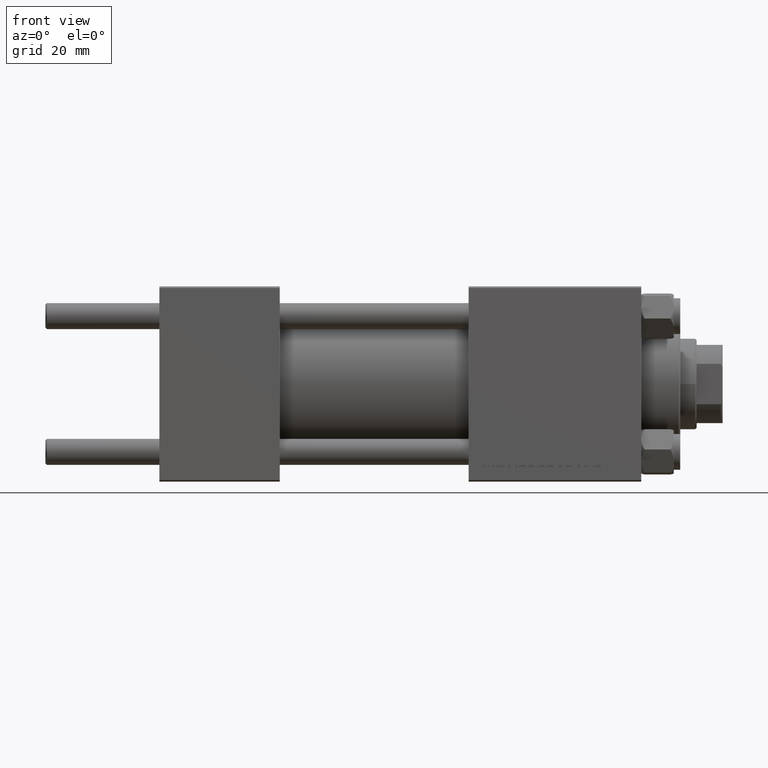
[diagram: clean part render]
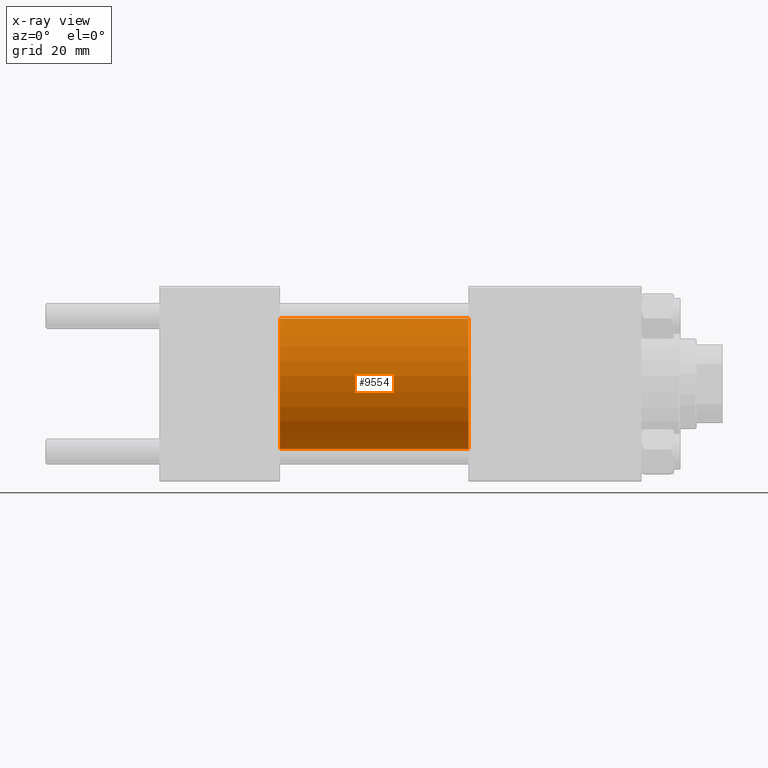
[diagram: x-ray — body ghosted, one internal face saturated and labeled with its STEP entity id]
A machine part, front view, then the same camera in x-ray: the body is ghosted and one INTERNAL B-rep face — a face not visible from any outside direction — is saturated and labeled: STEP entity #9554.
In plain terms, the highlighted cylindrical surface (partial cylindrical patch) has radius 20 mm, axis along (-1, -0, -0).
Its self-contained STEP definition (entity closure, byte-faithful):
#2413 = CIRCLE ( 'NONE', #50148, 20.00000000000000000 ) ;
#3868 = VERTEX_POINT ( 'NONE', #24675 ) ;
#5169 = ORIENTED_EDGE ( 'NONE', *, *, #37212, .T. ) ;
#7390 = CARTESIAN_POINT ( 'NONE',  ( 95.00000000000000000, 0.000000000000000000, 0.000000000000000000 ) ) ;
#9224 = CIRCLE ( 'NONE', #46417, 20.00000000000000000 ) ;
#9509 = CYLINDRICAL_SURFACE ( 'NONE', #11042, 20.00000000000000000 ) ;
#9554 = ADVANCED_FACE ( 'NONE', ( #37591 ), #9509, .F. ) ;
#11042 = AXIS2_PLACEMENT_3D ( 'NONE', #48240, #25201, #13305 ) ;
#11226 = DIRECTION ( 'NONE',  ( 0.000000000000000000, 0.000000000000000000, -1.000000000000000000 ) ) ;
#11710 = LINE ( 'NONE', #27148, #43449 ) ;
#12357 = EDGE_CURVE ( 'NONE', #19409, #3868, #11710, .T. ) ;
#12916 = CARTESIAN_POINT ( 'NONE',  ( 95.00000000000000000, 0.000000000000000000, 20.00000000000000000 ) ) ;
#13305 = DIRECTION ( 'NONE',  ( 0.000000000000000000, 0.000000000000000000, 1.000000000000000000 ) ) ;
#14570 = ORIENTED_EDGE ( 'NONE', *, *, #19335, .T. ) ;
#14631 = CARTESIAN_POINT ( 'NONE',  ( 95.00000000000000000, 2.449293598294706119E-15, -20.00000000000000000 ) ) ;
#18152 = EDGE_CURVE ( 'NONE', #3868, #47658, #2413, .T. ) ;
#18270 = DIRECTION ( 'NONE',  ( 0.000000000000000000, 0.000000000000000000, -1.000000000000000000 ) ) ;
#19335 = EDGE_CURVE ( 'NONE', #38493, #47658, #31407, .T. ) ;
#19409 = VERTEX_POINT ( 'NONE', #12916 ) ;
#19543 = DIRECTION ( 'NONE',  ( -1.000000000000000000, -0.000000000000000000, -0.000000000000000000 ) ) ;
#22823 = DIRECTION ( 'NONE',  ( 1.000000000000000000, 0.000000000000000000, 0.000000000000000000 ) ) ;
#24675 = CARTESIAN_POINT ( 'NONE',  ( 37.00000000000000000, 0.000000000000000000, 20.00000000000000000 ) ) ;
#25201 = DIRECTION ( 'NONE',  ( -1.000000000000000000, -0.000000000000000000, -0.000000000000000000 ) ) ;
#27148 = CARTESIAN_POINT ( 'NONE',  ( 95.00000000000000000, 0.000000000000000000, 20.00000000000000000 ) ) ;
#28765 = EDGE_LOOP ( 'NONE', ( #5169, #14570, #32631, #46870 ) ) ;
#29979 = CARTESIAN_POINT ( 'NONE',  ( 95.00000000000000000, 2.449293598294706119E-15, -20.00000000000000000 ) ) ;
#31407 = LINE ( 'NONE', #29979, #32357 ) ;
#32357 = VECTOR ( 'NONE', #45413, 1000.000000000000000 ) ;
#32631 = ORIENTED_EDGE ( 'NONE', *, *, #18152, .F. ) ;
#37212 = EDGE_CURVE ( 'NONE', #19409, #38493, #9224, .T. ) ;
#37591 = FACE_OUTER_BOUND ( 'NONE', #28765, .T. ) ;
#38493 = VERTEX_POINT ( 'NONE', #14631 ) ;
#41858 = CARTESIAN_POINT ( 'NONE',  ( 37.00000000000000000, 0.000000000000000000, 0.000000000000000000 ) ) ;
#42517 = CARTESIAN_POINT ( 'NONE',  ( 37.00000000000000000, 2.449293598294706119E-15, -20.00000000000000000 ) ) ;
#43449 = VECTOR ( 'NONE', #19543, 1000.000000000000000 ) ;
#45413 = DIRECTION ( 'NONE',  ( -1.000000000000000000, -0.000000000000000000, -0.000000000000000000 ) ) ;
#45899 = DIRECTION ( 'NONE',  ( 1.000000000000000000, 0.000000000000000000, 0.000000000000000000 ) ) ;
#46417 = AXIS2_PLACEMENT_3D ( 'NONE', #7390, #22823, #18270 ) ;
#46870 = ORIENTED_EDGE ( 'NONE', *, *, #12357, .F. ) ;
#47658 = VERTEX_POINT ( 'NONE', #42517 ) ;
#48240 = CARTESIAN_POINT ( 'NONE',  ( 95.00000000000000000, 0.000000000000000000, 0.000000000000000000 ) ) ;
#50148 = AXIS2_PLACEMENT_3D ( 'NONE', #41858, #45899, #11226 ) ;